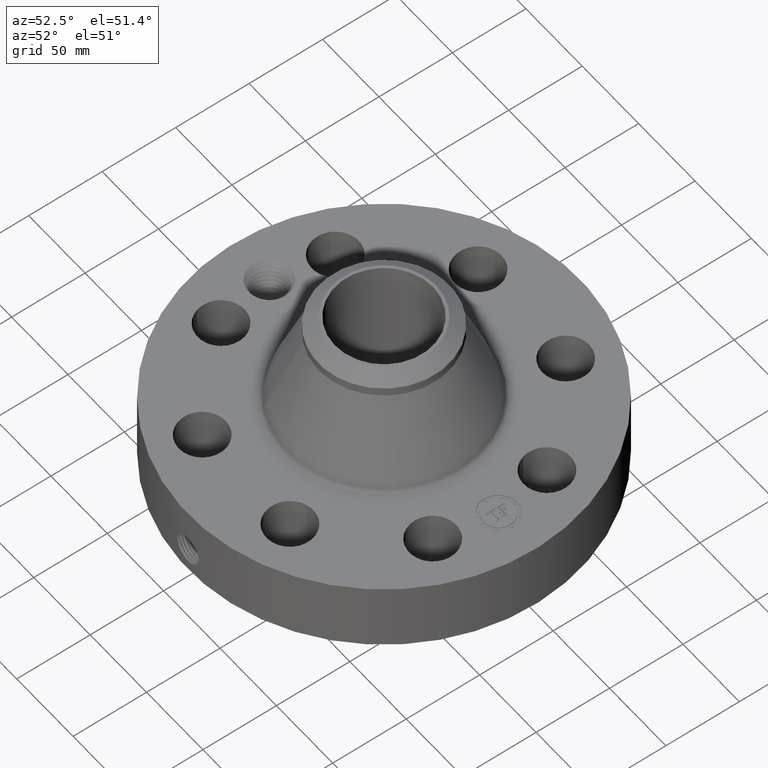
[diagram: clean part render]
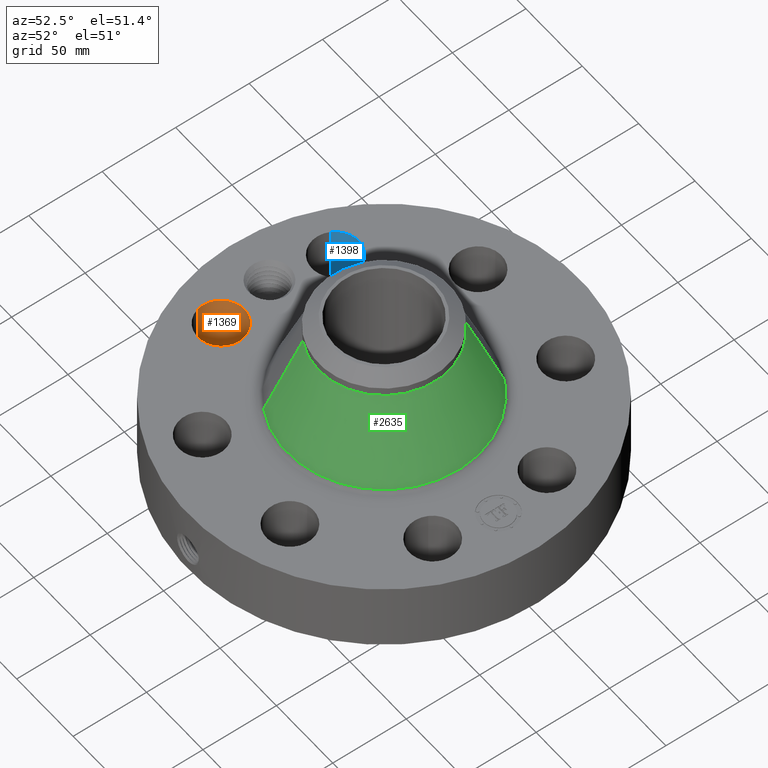
[diagram: same view with three faces highlighted in distinct colors, each labeled with its STEP entity id]
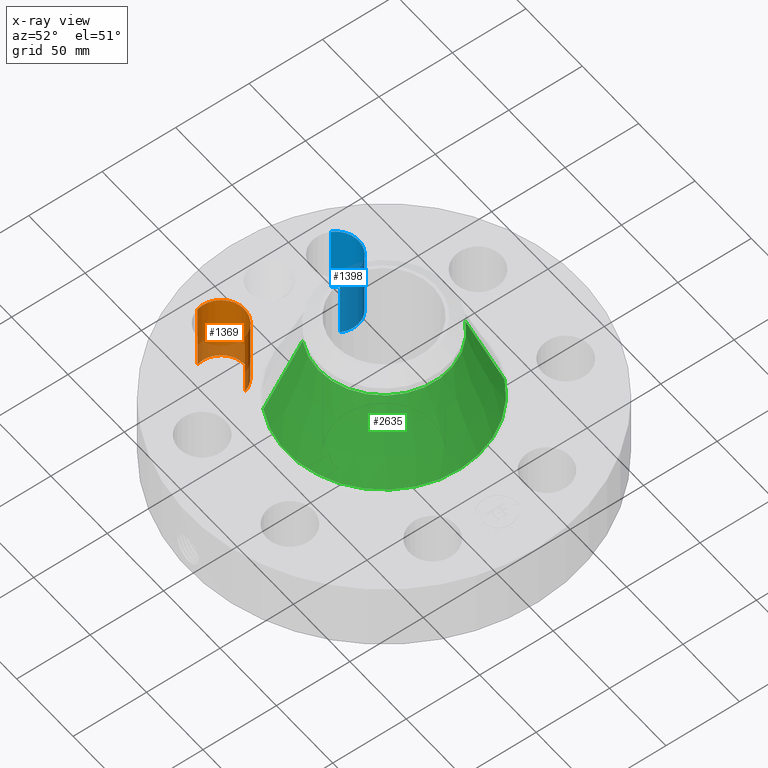
[diagram: x-ray of the same camera — body ghosted, the three highlighted faces saturated]
A machine part, auxiliary view with three faces highlighted in distinct colors.
The next image is the same camera in x-ray (body ghosted, the three faces saturated) — at least one of them is partly hidden behind the body in this view.
Their STEP definitions:

[orange] entity #1369 — the highlighted cylindrical surface (edge-blend (fillet) strip) has radius 15.875 mm, axis along (-0, 0, -1).
#312=AXIS2_PLACEMENT_3D('Circle Axis2P3D',#310,#311,$) ;
#627=AXIS2_PLACEMENT_3D('Circle Axis2P3D',#625,#626,$) ;
#1344=AXIS2_PLACEMENT_3D('Cylinder Axis2P3D',#1341,#1342,#1343) ;
#305=CARTESIAN_POINT('Vertex',(-3.09579961132,-1.3547715225,0.250000000001)) ;
#307=CARTESIAN_POINT('Vertex',(-4.2952366488,-1.70669593643,0.250000000001)) ;
#310=CARTESIAN_POINT('Axis2P3D Location',(-3.69551813006,-1.53073372947,0.250000000001)) ;
#625=CARTESIAN_POINT('Axis2P3D Location',(-3.69551813006,-1.53073372947,2.13000000001)) ;
#629=CARTESIAN_POINT('Vertex',(-4.2952366488,-1.70669593643,2.13000000001)) ;
#631=CARTESIAN_POINT('Vertex',(-3.09579961132,-1.3547715225,2.13000000001)) ;
#1341=CARTESIAN_POINT('Axis2P3D Location',(-3.69551813006,-1.53073372947,2.12606299213)) ;
#1346=CARTESIAN_POINT('Line Origine',(-3.09579961132,-1.3547715225,1.19)) ;
#1351=CARTESIAN_POINT('Line Origine',(-4.2952366488,-1.70669593643,1.19)) ;
#311=DIRECTION('Axis2P3D Direction',(0.,0.,-0.0393700787402)) ;
#626=DIRECTION('Axis2P3D Direction',(0.,0.,-0.0393700787402)) ;
#1342=DIRECTION('Axis2P3D Direction',(-0.,0.,-0.0393700787402)) ;
#1343=DIRECTION('Axis2P3D XDirection',(-0.0377775444876,-0.0110842335096,0.)) ;
#1347=DIRECTION('Vector Direction',(0.,0.,-0.0393700787402)) ;
#1352=DIRECTION('Vector Direction',(0.,0.,-0.0393700787402)) ;
#1348=VECTOR('Line Direction',#1347,0.0393700787402) ;
#1353=VECTOR('Line Direction',#1352,0.0393700787402) ;
#1364=ORIENTED_EDGE('',*,*,#1355,.F.) ;
#1365=ORIENTED_EDGE('',*,*,#314,.T.) ;
#1366=ORIENTED_EDGE('',*,*,#1350,.T.) ;
#1367=ORIENTED_EDGE('',*,*,#633,.F.) ;
#1369=ADVANCED_FACE('PartBody',(#1368),#1345,.F.) ;
#313=CIRCLE('generated circle',#312,0.625000000003) ;
#628=CIRCLE('generated circle',#627,0.625000000003) ;
#1345=CYLINDRICAL_SURFACE('generated cylinder',#1344,0.625000000003) ;
#314=EDGE_CURVE('',#308,#306,#313,.T.) ;
#633=EDGE_CURVE('',#630,#632,#628,.T.) ;
#1350=EDGE_CURVE('',#306,#632,#1349,.F.) ;
#1355=EDGE_CURVE('',#308,#630,#1354,.F.) ;
#1363=EDGE_LOOP('',(#1364,#1365,#1366,#1367)) ;
#1368=FACE_OUTER_BOUND('',#1363,.T.) ;
#1349=LINE('Line',#1346,#1348) ;
#1354=LINE('Line',#1351,#1353) ;
#306=VERTEX_POINT('',#305) ;
#308=VERTEX_POINT('',#307) ;
#630=VERTEX_POINT('',#629) ;
#632=VERTEX_POINT('',#631) ;

[blue] entity #1398 — the highlighted cylindrical surface (edge-blend (fillet) strip) has radius 15.875 mm, axis along (-0, 0, -1).
#330=AXIS2_PLACEMENT_3D('Circle Axis2P3D',#328,#329,$) ;
#645=AXIS2_PLACEMENT_3D('Circle Axis2P3D',#643,#644,$) ;
#1373=AXIS2_PLACEMENT_3D('Cylinder Axis2P3D',#1370,#1371,#1372) ;
#323=CARTESIAN_POINT('Vertex',(-3.14702902888,1.23109276784,0.250000000001)) ;
#325=CARTESIAN_POINT('Vertex',(-4.24400723124,1.8303746911,0.250000000001)) ;
#328=CARTESIAN_POINT('Axis2P3D Location',(-3.69551813006,1.53073372947,0.250000000001)) ;
#643=CARTESIAN_POINT('Axis2P3D Location',(-3.69551813006,1.53073372947,2.13000000001)) ;
#647=CARTESIAN_POINT('Vertex',(-4.24400723124,1.8303746911,2.13000000001)) ;
#649=CARTESIAN_POINT('Vertex',(-3.14702902888,1.23109276784,2.13000000001)) ;
#1370=CARTESIAN_POINT('Axis2P3D Location',(-3.69551813006,1.53073372947,2.12606299213)) ;
#1375=CARTESIAN_POINT('Line Origine',(-3.14702902888,1.23109276784,1.19)) ;
#1380=CARTESIAN_POINT('Line Origine',(-4.24400723124,1.8303746911,1.19)) ;
#329=DIRECTION('Axis2P3D Direction',(0.,0.,-0.0393700787402)) ;
#644=DIRECTION('Axis2P3D Direction',(0.,0.,-0.0393700787402)) ;
#1371=DIRECTION('Axis2P3D Direction',(-0.,0.,-0.0393700787402)) ;
#1372=DIRECTION('Axis2P3D XDirection',(-0.0345504945626,0.0188750212049,0.)) ;
#1376=DIRECTION('Vector Direction',(0.,0.,-0.0393700787402)) ;
#1381=DIRECTION('Vector Direction',(0.,0.,-0.0393700787402)) ;
#1377=VECTOR('Line Direction',#1376,0.0393700787402) ;
#1382=VECTOR('Line Direction',#1381,0.0393700787402) ;
#1393=ORIENTED_EDGE('',*,*,#1384,.F.) ;
#1394=ORIENTED_EDGE('',*,*,#332,.T.) ;
#1395=ORIENTED_EDGE('',*,*,#1379,.T.) ;
#1396=ORIENTED_EDGE('',*,*,#651,.F.) ;
#1398=ADVANCED_FACE('PartBody',(#1397),#1374,.F.) ;
#331=CIRCLE('generated circle',#330,0.625000000002) ;
#646=CIRCLE('generated circle',#645,0.625000000002) ;
#1374=CYLINDRICAL_SURFACE('generated cylinder',#1373,0.625000000002) ;
#332=EDGE_CURVE('',#326,#324,#331,.T.) ;
#651=EDGE_CURVE('',#648,#650,#646,.T.) ;
#1379=EDGE_CURVE('',#324,#650,#1378,.F.) ;
#1384=EDGE_CURVE('',#326,#648,#1383,.F.) ;
#1392=EDGE_LOOP('',(#1393,#1394,#1395,#1396)) ;
#1397=FACE_OUTER_BOUND('',#1392,.T.) ;
#1378=LINE('Line',#1375,#1377) ;
#1383=LINE('Line',#1380,#1382) ;
#324=VERTEX_POINT('',#323) ;
#326=VERTEX_POINT('',#325) ;
#648=VERTEX_POINT('',#647) ;
#650=VERTEX_POINT('',#649) ;

[green] entity #2635 — the highlighted conical surface has half-angle 21.44 deg.
#1892=AXIS2_PLACEMENT_3D('Circle Axis2P3D',#1890,#1891,$) ;
#2608=AXIS2_PLACEMENT_3D('Cone Axis2P3D',#2605,#2606,#2607) ;
#2619=AXIS2_PLACEMENT_3D('Circle Axis2P3D',#2617,#2618,$) ;
#1887=CARTESIAN_POINT('Vertex',(1.24415753478,2.27741509129,2.20613599613)) ;
#1890=CARTESIAN_POINT('Axis2P3D Location',(0.,0.,2.20613599613)) ;
#1894=CARTESIAN_POINT('Vertex',(-1.24415753478,-2.27741509129,2.20613599613)) ;
#2605=CARTESIAN_POINT('Axis2P3D Location',(0.,0.,4.35810975471)) ;
#2610=CARTESIAN_POINT('Line Origine',(1.04157611367,1.9065922873,3.28212287542)) ;
#2614=CARTESIAN_POINT('Vertex',(0.838994692561,1.53576948331,4.35810975471)) ;
#2617=CARTESIAN_POINT('Axis2P3D Location',(0.,0.,4.35810975471)) ;
#2621=CARTESIAN_POINT('Vertex',(-0.838994692561,-1.53576948331,4.35810975471)) ;
#2624=CARTESIAN_POINT('Line Origine',(-1.04157611367,-1.9065922873,3.28212287542)) ;
#1891=DIRECTION('Axis2P3D Direction',(0.,0.,-0.0393700787402)) ;
#2606=DIRECTION('Axis2P3D Direction',(0.,0.,-0.0393700787402)) ;
#2607=DIRECTION('Axis2P3D XDirection',(-0.0188750212049,-0.0345504945626,0.)) ;
#2611=DIRECTION('Vector Direction',(0.00689945002761,0.0126293585621,-0.0366455998946)) ;
#2618=DIRECTION('Axis2P3D Direction',(0.,0.,-0.0393700787402)) ;
#2625=DIRECTION('Vector Direction',(-0.00689945002761,-0.0126293585621,-0.0366455998946)) ;
#2612=VECTOR('Line Direction',#2611,0.0393700787402) ;
#2626=VECTOR('Line Direction',#2625,0.0393700787402) ;
#2630=ORIENTED_EDGE('',*,*,#1896,.F.) ;
#2631=ORIENTED_EDGE('',*,*,#2616,.T.) ;
#2632=ORIENTED_EDGE('',*,*,#2623,.T.) ;
#2633=ORIENTED_EDGE('',*,*,#2628,.F.) ;
#2635=ADVANCED_FACE('PartBody',(#2634),#2609,.T.) ;
#1893=CIRCLE('generated circle',#1892,2.59510066652) ;
#2620=CIRCLE('generated circle',#2619,1.75000000001) ;
#2609=CONICAL_SURFACE('Cone',#2608,1.75000000001,0.374205758258) ;
#1896=EDGE_CURVE('',#1888,#1895,#1893,.T.) ;
#2616=EDGE_CURVE('',#1888,#2615,#2613,.F.) ;
#2623=EDGE_CURVE('',#2615,#2622,#2620,.T.) ;
#2628=EDGE_CURVE('',#1895,#2622,#2627,.F.) ;
#2629=EDGE_LOOP('',(#2630,#2631,#2632,#2633)) ;
#2634=FACE_OUTER_BOUND('',#2629,.T.) ;
#2613=LINE('Line',#2610,#2612) ;
#2627=LINE('Line',#2624,#2626) ;
#1888=VERTEX_POINT('',#1887) ;
#1895=VERTEX_POINT('',#1894) ;
#2615=VERTEX_POINT('',#2614) ;
#2622=VERTEX_POINT('',#2621) ;